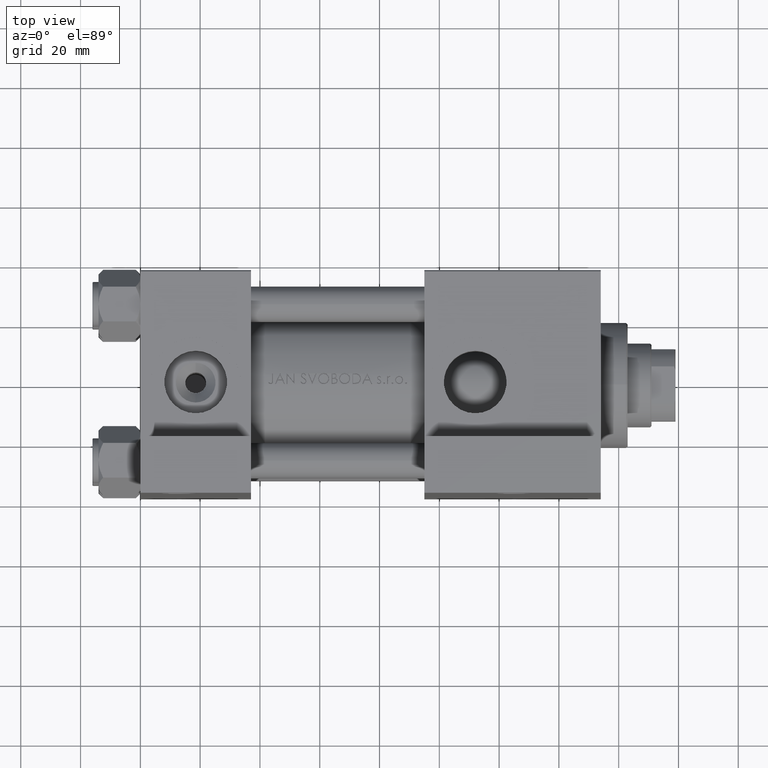
[diagram: clean part render]
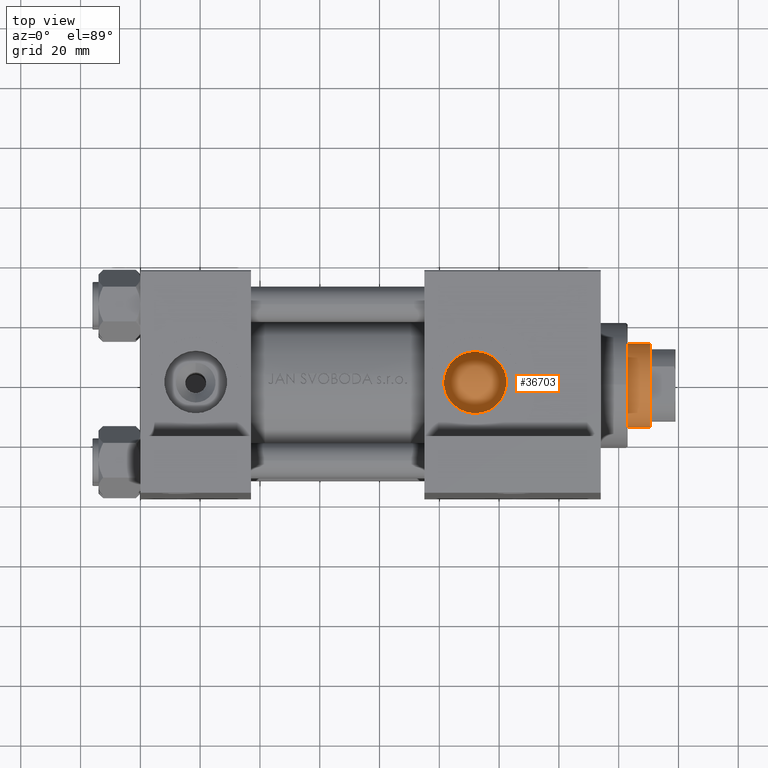
[diagram: same view with one face highlighted and labeled with its STEP entity id]
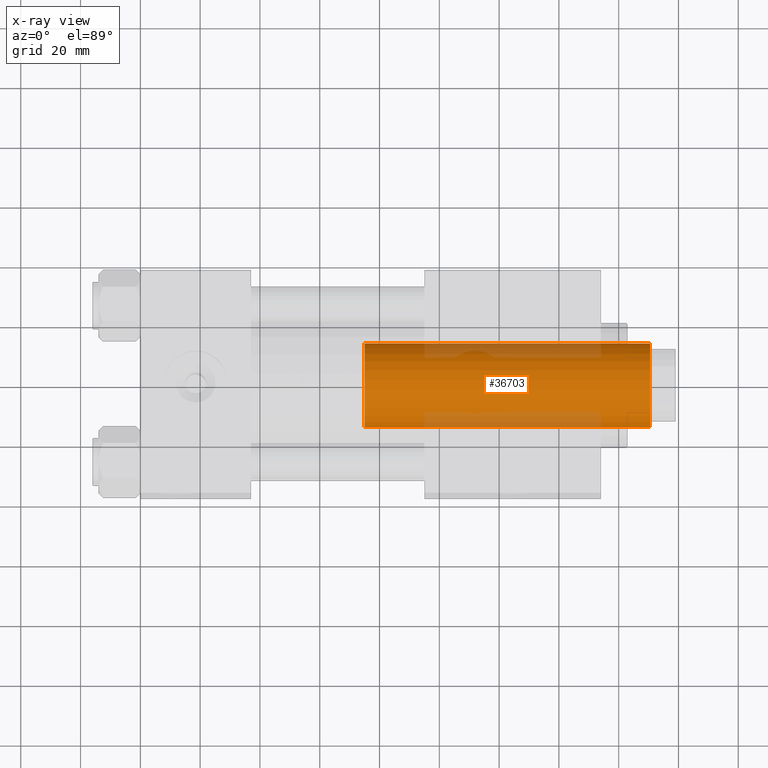
[diagram: x-ray of the same camera — body ghosted, the highlighted face saturated]
A machine part, top view. The second image highlights one B-rep face of the part: STEP entity #36703.
The next image is the same camera in x-ray: the body ghosted, the highlighted face saturated — about 21% of this face is hidden behind the body in this view.
In plain terms, the highlighted cylindrical surface (partial cylindrical patch) has radius 14 mm, axis along (-1, 0, 0).
Its self-contained STEP definition (entity closure, byte-faithful):
#1647 = CARTESIAN_POINT ( 'NONE',  ( 14.00000000000000178, 1.714505518806294835E-15, 134.0000000000000000 ) ) ;
#2020 = DIRECTION ( 'NONE',  ( 1.000000000000000000, 0.000000000000000000, 0.000000000000000000 ) ) ;
#2623 = LINE ( 'NONE', #1647, #41948 ) ;
#2757 = DIRECTION ( 'NONE',  ( 0.000000000000000000, 0.000000000000000000, 1.000000000000000000 ) ) ;
#4755 = CARTESIAN_POINT ( 'NONE',  ( -14.00000000000000178, 0.000000000000000000, 134.0000000000000000 ) ) ;
#6998 = CYLINDRICAL_SURFACE ( 'NONE', #34749, 14.00000000000000178 ) ;
#7830 = CIRCLE ( 'NONE', #44614, 14.00000000000000178 ) ;
#9103 = ORIENTED_EDGE ( 'NONE', *, *, #43739, .T. ) ;
#9264 = EDGE_CURVE ( 'NONE', #12795, #35831, #2623, .T. ) ;
#9265 = LINE ( 'NONE', #4755, #19018 ) ;
#12795 = VERTEX_POINT ( 'NONE', #44279 ) ;
#13793 = CARTESIAN_POINT ( 'NONE',  ( 0.000000000000000000, 0.000000000000000000, 38.00000000000000000 ) ) ;
#14513 = CARTESIAN_POINT ( 'NONE',  ( 0.000000000000000000, 0.000000000000000000, 134.0000000000000000 ) ) ;
#16658 = CARTESIAN_POINT ( 'NONE',  ( -14.00000000000000178, 0.000000000000000000, 133.5000000000000284 ) ) ;
#16894 = AXIS2_PLACEMENT_3D ( 'NONE', #13793, #2757, #2020 ) ;
#18072 = EDGE_CURVE ( 'NONE', #30709, #29524, #9265, .T. ) ;
#19018 = VECTOR ( 'NONE', #39580, 1000.000000000000000 ) ;
#19104 = CARTESIAN_POINT ( 'NONE',  ( 0.000000000000000000, 0.000000000000000000, 133.5000000000000284 ) ) ;
#22354 = DIRECTION ( 'NONE',  ( 0.000000000000000000, 0.000000000000000000, -1.000000000000000000 ) ) ;
#22760 = FACE_OUTER_BOUND ( 'NONE', #29910, .T. ) ;
#23936 = DIRECTION ( 'NONE',  ( -1.000000000000000000, 0.000000000000000000, 0.000000000000000000 ) ) ;
#27879 = ORIENTED_EDGE ( 'NONE', *, *, #18072, .T. ) ;
#27888 = ORIENTED_EDGE ( 'NONE', *, *, #9264, .F. ) ;
#29524 = VERTEX_POINT ( 'NONE', #35477 ) ;
#29910 = EDGE_LOOP ( 'NONE', ( #27888, #9103, #27879, #40942 ) ) ;
#30530 = DIRECTION ( 'NONE',  ( -0.000000000000000000, -0.000000000000000000, -1.000000000000000000 ) ) ;
#30709 = VERTEX_POINT ( 'NONE', #16658 ) ;
#33636 = CIRCLE ( 'NONE', #16894, 14.00000000000000178 ) ;
#34749 = AXIS2_PLACEMENT_3D ( 'NONE', #14513, #30530, #23936 ) ;
#35477 = CARTESIAN_POINT ( 'NONE',  ( -14.00000000000000178, 0.000000000000000000, 38.00000000000000000 ) ) ;
#35831 = VERTEX_POINT ( 'NONE', #36990 ) ;
#36701 = DIRECTION ( 'NONE',  ( -0.000000000000000000, -0.000000000000000000, -1.000000000000000000 ) ) ;
#36703 = ADVANCED_FACE ( 'NONE', ( #22760 ), #6998, .T. ) ;
#36990 = CARTESIAN_POINT ( 'NONE',  ( 14.00000000000000178, 1.714505518806294835E-15, 38.00000000000000000 ) ) ;
#37649 = DIRECTION ( 'NONE',  ( 1.000000000000000000, 0.000000000000000000, 0.000000000000000000 ) ) ;
#39580 = DIRECTION ( 'NONE',  ( -0.000000000000000000, -0.000000000000000000, -1.000000000000000000 ) ) ;
#40942 = ORIENTED_EDGE ( 'NONE', *, *, #47939, .T. ) ;
#41948 = VECTOR ( 'NONE', #36701, 1000.000000000000000 ) ;
#43739 = EDGE_CURVE ( 'NONE', #12795, #30709, #7830, .T. ) ;
#44279 = CARTESIAN_POINT ( 'NONE',  ( 14.00000000000000178, 1.714505518806294835E-15, 133.5000000000000284 ) ) ;
#44614 = AXIS2_PLACEMENT_3D ( 'NONE', #19104, #22354, #37649 ) ;
#47939 = EDGE_CURVE ( 'NONE', #29524, #35831, #33636, .T. ) ;